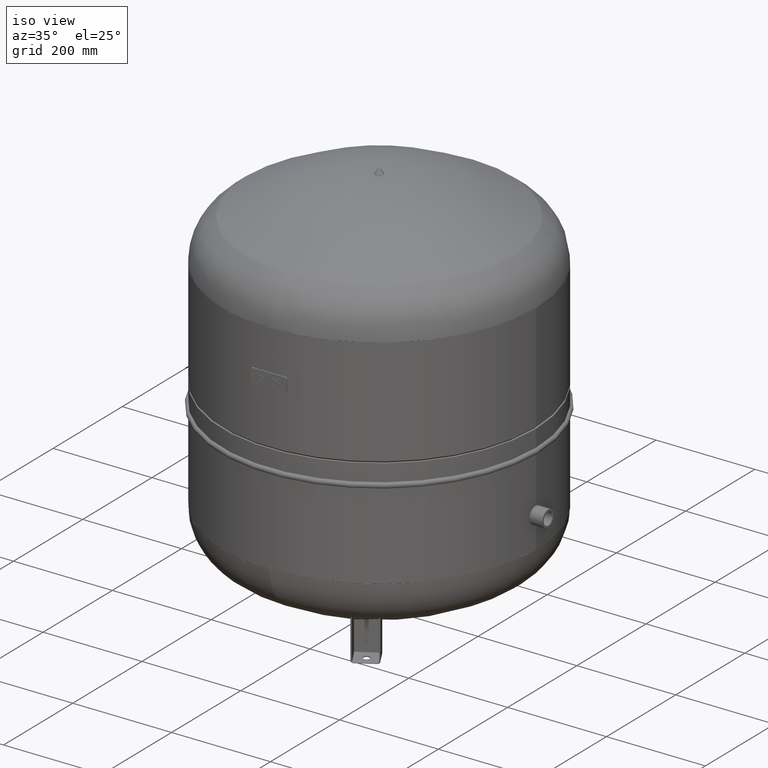
[diagram: clean part render]
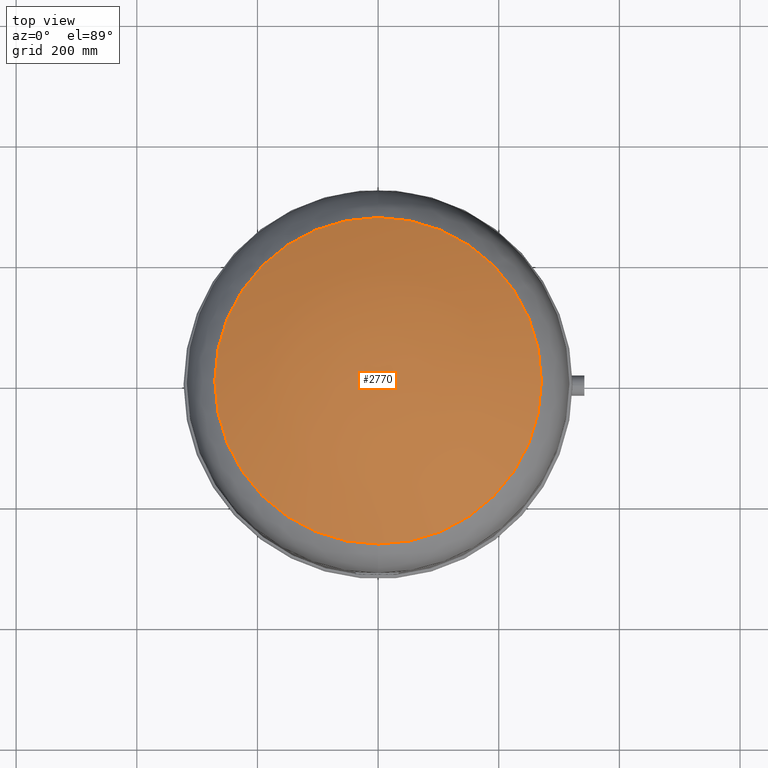
[diagram: tour spotlight — one face highlighted and labeled with its STEP entity id]
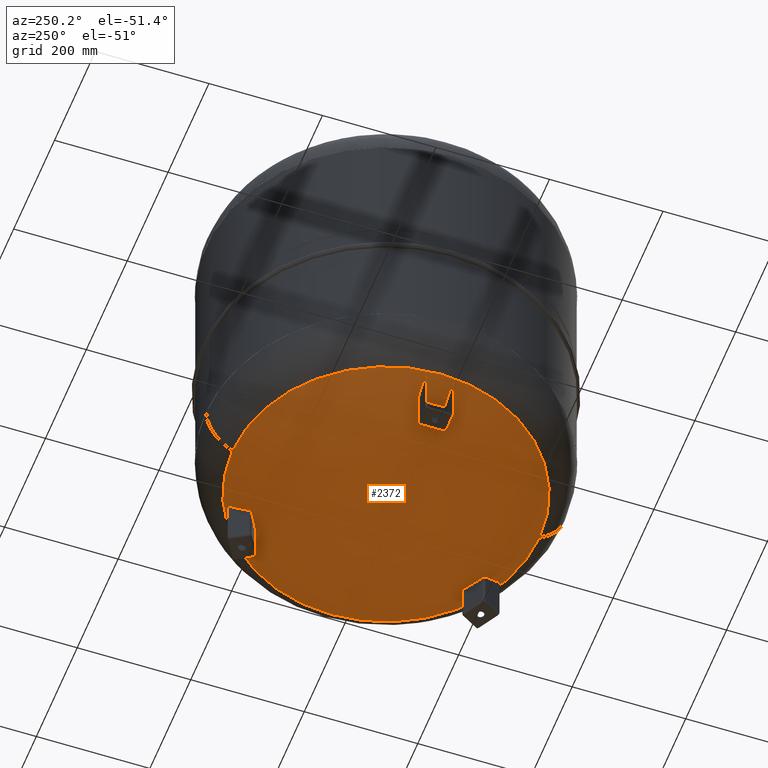
[diagram: tour spotlight — one face highlighted and labeled with its STEP entity id]
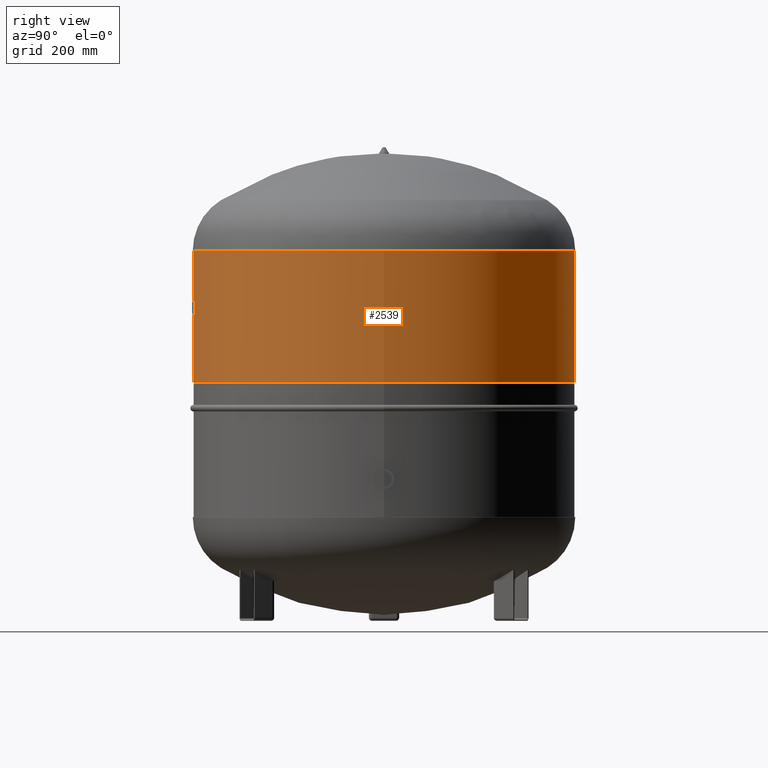
[diagram: tour spotlight — one face highlighted and labeled with its STEP entity id]
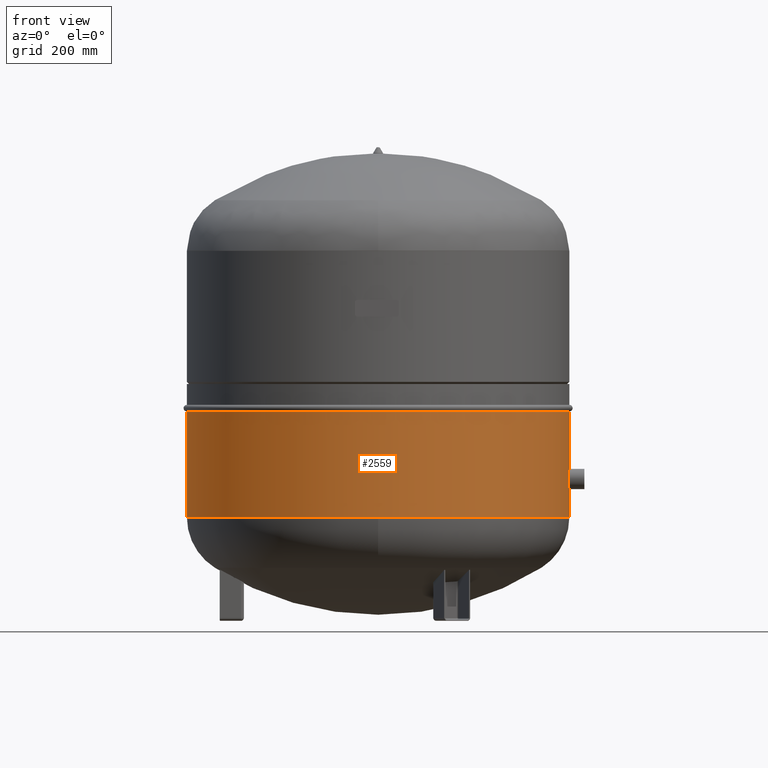
[diagram: tour spotlight — one face highlighted and labeled with its STEP entity id]
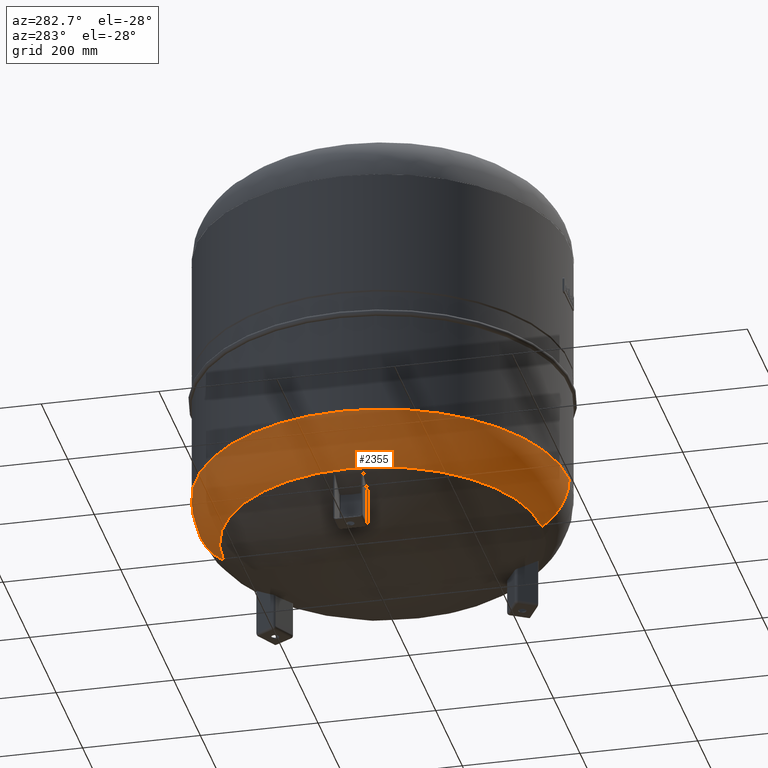
[diagram: tour spotlight — one face highlighted and labeled with its STEP entity id]
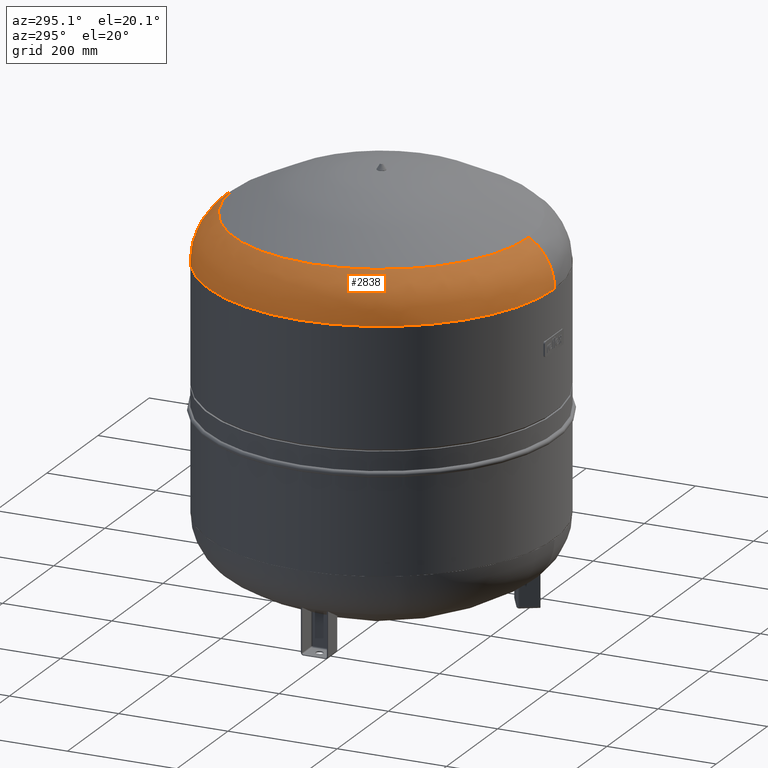
[diagram: tour spotlight — one face highlighted and labeled with its STEP entity id]
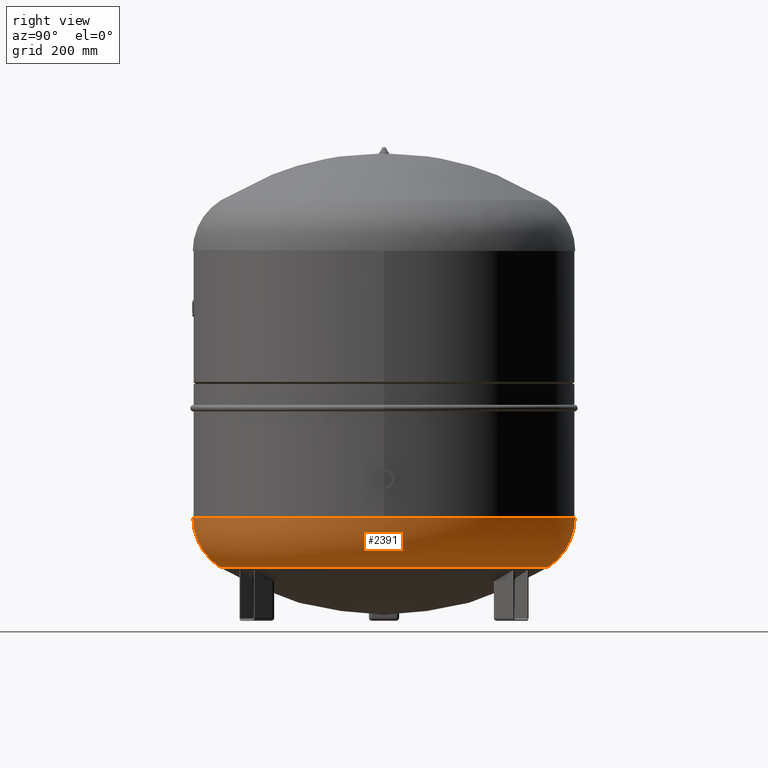
[diagram: tour spotlight — one face highlighted and labeled with its STEP entity id]
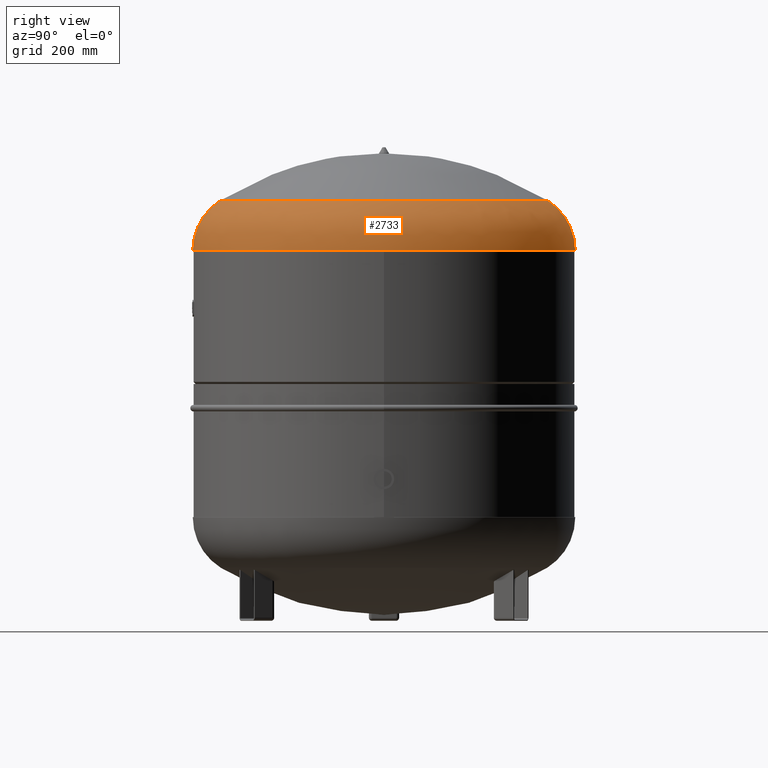
[diagram: tour spotlight — one face highlighted and labeled with its STEP entity id]
A machine part: a face-by-face anatomy tour. The part has 245 B-rep faces; the first image is the clean iso view, then the 8 largest visible faces are spotlighted one at a time (largest first), each with its STEP entity span.

Face 1 — top view, entity #2770. In plain terms, the highlighted face is a freeform B-spline surface patch.
Definition (entity closure, byte-faithful):
#2696=CARTESIAN_POINT('',(8.065826E-015,-270.639024390243830,697.086439681297520));
#2697=VERTEX_POINT('',#2696);
#2715=CARTESIAN_POINT('',(-2.507680E-014,270.639024390243830,697.086439681297520));
#2716=VERTEX_POINT('',#2715);
#2724=CARTESIAN_POINT('',(-7.495146E-015,-1.431249E-014,697.086439681297520));
#2725=DIRECTION('',(0.0,0.0,1.0));
#2726=DIRECTION('',(-1.0,0.0,0.0));
#2727=AXIS2_PLACEMENT_3D('',#2724,#2725,#2726);
#2728=CIRCLE('',#2727,270.639024390243830);
#2729=EDGE_CURVE('',#2697,#2716,#2728,.T.);
#2734=CARTESIAN_POINT('',(-229.211814269567920,270.639024390243780,631.099250446163070));
#2735=CARTESIAN_POINT('',(-319.553692100537090,-2.842171E-014,775.000000000000110));
#2736=CARTESIAN_POINT('',(-229.211814269567950,-270.639024390243830,631.099250446163180));
#2737=CARTESIAN_POINT('',(5.684342E-014,270.639024390243780,774.999999999999770));
#2738=CARTESIAN_POINT('',(5.684342E-014,8.431219E-015,975.618000265392540));
#2739=CARTESIAN_POINT('',(2.842171E-014,-270.639024390243830,775.0));
#2740=CARTESIAN_POINT('',(229.211814269567920,270.639024390243780,631.099250446162840));
#2741=CARTESIAN_POINT('',(319.553692100536980,-2.842171E-014,774.999999999999770));
#2742=CARTESIAN_POINT('',(229.211814269567920,-270.639024390243830,631.099250446163070));
#2750=(BOUNDED_SURFACE()B_SPLINE_SURFACE(2,2,((#2734,#2737,#2740),(#2735,#2738,#2741),(#2736,#2739,#2742)),.UNSPECIFIED.,.F.,.F.,.U.)B_SPLINE_SURFACE_WITH_KNOTS((3,3),(3,3),(-0.560615186256406,0.560615186256406),(0.0,1.121230372512813),.UNSPECIFIED.)GEOMETRIC_REPRESENTATION_ITEM()RATIONAL_B_SPLINE_SURFACE(((1.0,0.846928172261881,1.0),(0.846928172261882,0.717287328970851,0.846928172261882),(1.0,0.846928172261881,1.0)))REPRESENTATION_ITEM('')SURFACE());
#2751=CARTESIAN_POINT('',(-270.639024390243830,-1.431249E-014,697.086439681297630));
#2752=VERTEX_POINT('',#2751);
#2753=CARTESIAN_POINT('',(-7.495146E-015,-1.431249E-014,697.086439681297520));
#2754=DIRECTION('',(0.0,0.0,1.0));
#2755=DIRECTION('',(-1.0,0.0,0.0));
#2756=AXIS2_PLACEMENT_3D('',#2753,#2754,#2755);
#2757=CIRCLE('',#2756,270.639024390243830);
#2758=EDGE_CURVE('',#2752,#2697,#2757,.T.);
#2759=ORIENTED_EDGE('',*,*,#2758,.T.);
#2760=ORIENTED_EDGE('',*,*,#2729,.T.);
#2761=CARTESIAN_POINT('',(-7.495146E-015,-1.431249E-014,697.086439681297520));
#2762=DIRECTION('',(0.0,0.0,1.0));
#2763=DIRECTION('',(-1.0,0.0,0.0));
#2764=AXIS2_PLACEMENT_3D('',#2761,#2762,#2763);
#2765=CIRCLE('',#2764,270.639024390243830);
#2766=EDGE_CURVE('',#2716,#2752,#2765,.T.);
#2767=ORIENTED_EDGE('',*,*,#2766,.T.);
#2768=EDGE_LOOP('',(#2759,#2760,#2767));
#2769=FACE_OUTER_BOUND('',#2768,.T.);
#2770=ADVANCED_FACE('',(#2769),#2750,.T.);

Face 2 — auxiliary view, entity #2372. In plain terms, the highlighted spherical surface has radius 509 mm.
Definition (entity closure, byte-faithful):
#2311=CARTESIAN_POINT('',(8.065826E-015,-270.639024390243830,87.913560318702380));
#2312=VERTEX_POINT('',#2311);
#2328=CARTESIAN_POINT('',(-2.507680E-014,270.639024390243830,87.913560318702480));
#2329=VERTEX_POINT('',#2328);
#2337=CARTESIAN_POINT('',(-270.639024390243830,-1.431249E-014,87.913560318702423));
#2338=VERTEX_POINT('',#2337);
#2339=CARTESIAN_POINT('',(-7.495146E-015,-1.431249E-014,87.913560318702437));
#2340=DIRECTION('',(0.0,0.0,1.0));
#2341=DIRECTION('',(-1.0,0.0,0.0));
#2342=AXIS2_PLACEMENT_3D('',#2339,#2340,#2341);
#2343=CIRCLE('',#2342,270.639024390243830);
#2344=EDGE_CURVE('',#2329,#2338,#2343,.T.);
#2346=CARTESIAN_POINT('',(-7.495146E-015,-1.431249E-014,87.913560318702437));
#2347=DIRECTION('',(0.0,0.0,1.0));
#2348=DIRECTION('',(-1.0,0.0,0.0));
#2349=AXIS2_PLACEMENT_3D('',#2346,#2347,#2348);
#2350=CIRCLE('',#2349,270.639024390243830);
#2351=EDGE_CURVE('',#2338,#2312,#2350,.T.);
#2356=CARTESIAN_POINT('',(-1.005746E-013,-9.350178E-014,519.0));
#2357=DIRECTION('',(0.0,-1.0,0.0));
#2358=DIRECTION('',(1.0,0.0,0.0));
#2359=AXIS2_PLACEMENT_3D('',#2356,#2357,#2358);
#2360=SPHERICAL_SURFACE('',#2359,509.000000000000060);
#2361=ORIENTED_EDGE('',*,*,#2351,.F.);
#2362=ORIENTED_EDGE('',*,*,#2344,.F.);
#2363=CARTESIAN_POINT('',(-7.495146E-015,-1.431249E-014,87.913560318702437));
#2364=DIRECTION('',(0.0,0.0,1.0));
#2365=DIRECTION('',(-1.0,0.0,0.0));
#2366=AXIS2_PLACEMENT_3D('',#2363,#2364,#2365);
#2367=CIRCLE('',#2366,270.639024390243830);
#2368=EDGE_CURVE('',#2312,#2329,#2367,.T.);
#2369=ORIENTED_EDGE('',*,*,#2368,.F.);
#2370=EDGE_LOOP('',(#2361,#2362,#2369));
#2371=FACE_OUTER_BOUND('',#2370,.T.);
#2372=ADVANCED_FACE('',(#2371),#2360,.T.);

Face 3 — right view, entity #2539. In plain terms, the highlighted cylindrical surface (bore or boss wall) has radius 317 mm, axis along (0, 0, 1).
Definition (entity closure, byte-faithful):
#2428=CARTESIAN_POINT('',(317.0,0.0,613.0));
#2429=VERTEX_POINT('',#2428);
#2430=CARTESIAN_POINT('',(1.668796E-014,0.0,613.0));
#2431=DIRECTION('',(0.0,0.0,1.0));
#2432=DIRECTION('',(1.0,0.0,0.0));
#2433=AXIS2_PLACEMENT_3D('',#2430,#2431,#2432);
#2434=CIRCLE('',#2433,317.0);
#2435=EDGE_CURVE('',#2429,#2429,#2434,.T.);
#2513=CARTESIAN_POINT('',(316.999999999999940,0.0,395.999993016203580));
#2514=VERTEX_POINT('',#2513);
#2515=CARTESIAN_POINT('',(2.710337E-016,0.0,395.999993016203630));
#2516=DIRECTION('',(0.0,0.0,1.0));
#2517=DIRECTION('',(1.0,0.0,0.0));
#2518=AXIS2_PLACEMENT_3D('',#2515,#2516,#2517);
#2519=CIRCLE('',#2518,316.999999999999940);
#2520=EDGE_CURVE('',#2514,#2514,#2519,.T.);
#2528=CARTESIAN_POINT('',(8.479499E-015,0.0,501.999996508101790));
#2529=DIRECTION('',(7.743835E-017,0.0,1.0));
#2530=DIRECTION('',(1.0,0.0,0.0));
#2531=AXIS2_PLACEMENT_3D('',#2528,#2529,#2530);
#2532=CYLINDRICAL_SURFACE('',#2531,316.999999999999940);
#2533=ORIENTED_EDGE('',*,*,#2435,.F.);
#2534=EDGE_LOOP('',(#2533));
#2535=FACE_OUTER_BOUND('',#2534,.T.);
#2536=ORIENTED_EDGE('',*,*,#2520,.T.);
#2537=EDGE_LOOP('',(#2536));
#2538=FACE_BOUND('',#2537,.T.);
#2539=ADVANCED_FACE('',(#2535,#2538),#2532,.T.);

Face 4 — front view, entity #2559. In plain terms, the highlighted cylindrical surface (bore or boss wall) has radius 317 mm, axis along (0, 0, 1).
Definition (entity closure, byte-faithful):
#2445=CARTESIAN_POINT('',(317.000000000000110,0.0,347.050004485004250));
#2446=VERTEX_POINT('',#2445);
#2447=CARTESIAN_POINT('',(-3.519573E-015,0.0,347.050004485004250));
#2448=DIRECTION('',(0.0,0.0,1.0));
#2449=DIRECTION('',(1.0,0.0,0.0));
#2450=AXIS2_PLACEMENT_3D('',#2447,#2448,#2449);
#2451=CIRCLE('',#2450,317.000000000000110);
#2452=EDGE_CURVE('',#2446,#2446,#2451,.T.);
#2540=CARTESIAN_POINT('',(-1.668796E-014,0.0,174.500000000000060));
#2541=DIRECTION('',(0.0,0.0,1.0));
#2542=DIRECTION('',(1.0,0.0,0.0));
#2543=AXIS2_PLACEMENT_3D('',#2540,#2541,#2542);
#2544=CYLINDRICAL_SURFACE('',#2543,317.0);
#2545=ORIENTED_EDGE('',*,*,#2452,.F.);
#2546=EDGE_LOOP('',(#2545));
#2547=FACE_OUTER_BOUND('',#2546,.T.);
#2548=CARTESIAN_POINT('',(317.0,0.0,172.000000000000060));
#2549=VERTEX_POINT('',#2548);
#2550=CARTESIAN_POINT('',(-1.668796E-014,0.0,172.000000000000060));
#2551=DIRECTION('',(0.0,0.0,-1.0));
#2552=DIRECTION('',(1.0,0.0,0.0));
#2553=AXIS2_PLACEMENT_3D('',#2550,#2551,#2552);
#2554=CIRCLE('',#2553,317.0);
#2555=EDGE_CURVE('',#2549,#2549,#2554,.T.);
#2556=ORIENTED_EDGE('',*,*,#2555,.F.);
#2557=EDGE_LOOP('',(#2556));
#2558=FACE_BOUND('',#2557,.T.);
#2559=ADVANCED_FACE('',(#2547,#2558),#2544,.T.);

Face 5 — auxiliary view, entity #2355. In plain terms, the highlighted toroidal blend (fillet) surface has major radius 218 mm and minor (blend) radius 99 mm.
Definition (entity closure, byte-faithful):
#2260=CARTESIAN_POINT('',(-317.000000000000060,-2.971473E-014,171.759449372628580));
#2261=VERTEX_POINT('',#2260);
#2285=CARTESIAN_POINT('',(-3.882002E-014,317.0,171.759449372628690));
#2286=VERTEX_POINT('',#2285);
#2294=CARTESIAN_POINT('',(-1.556097E-014,-2.971473E-014,171.759449372628640));
#2295=DIRECTION('',(0.0,0.0,1.0));
#2296=DIRECTION('',(-1.0,0.0,0.0));
#2297=AXIS2_PLACEMENT_3D('',#2294,#2295,#2296);
#2298=CIRCLE('',#2297,317.000000000000060);
#2299=EDGE_CURVE('',#2286,#2261,#2298,.T.);
#2304=CARTESIAN_POINT('',(0.0,-2.971473E-014,171.759449372628670));
#2305=DIRECTION('',(-9.619823E-017,-1.836970E-016,1.0));
#2306=DIRECTION('',(0.0,-1.0,0.0));
#2307=AXIS2_PLACEMENT_3D('',#2304,#2305,#2306);
#2308=TOROIDAL_SURFACE('',#2307,218.0,99.0);
#2309=CARTESIAN_POINT('',(6.444462E-030,-317.000000000000110,171.759449372628580));
#2310=VERTEX_POINT('',#2309);
#2311=CARTESIAN_POINT('',(8.065826E-015,-270.639024390243830,87.913560318702380));
#2312=VERTEX_POINT('',#2311);
#2313=CARTESIAN_POINT('',(0.0,-218.000000000000030,171.759449372628640));
#2314=DIRECTION('',(1.0,0.0,0.0));
#2315=DIRECTION('',(0.0,-1.0,0.0));
#2316=AXIS2_PLACEMENT_3D('',#2313,#2314,#2315);
#2317=CIRCLE('',#2316,99.0);
#2318=EDGE_CURVE('',#2310,#2312,#2317,.T.);
#2319=ORIENTED_EDGE('',*,*,#2318,.F.);
#2320=CARTESIAN_POINT('',(-1.556097E-014,-2.971473E-014,171.759449372628640));
#2321=DIRECTION('',(0.0,0.0,1.0));
#2322=DIRECTION('',(-1.0,0.0,0.0));
#2323=AXIS2_PLACEMENT_3D('',#2320,#2321,#2322);
#2324=CIRCLE('',#2323,317.000000000000060);
#2325=EDGE_CURVE('',#2261,#2310,#2324,.T.);
#2326=ORIENTED_EDGE('',*,*,#2325,.F.);
#2327=ORIENTED_EDGE('',*,*,#2299,.F.);
#2328=CARTESIAN_POINT('',(-2.507680E-014,270.639024390243830,87.913560318702480));
#2329=VERTEX_POINT('',#2328);
#2330=CARTESIAN_POINT('',(-2.669642E-014,217.999999999999970,171.759449372628690));
#2331=DIRECTION('',(-1.0,0.0,0.0));
#2332=DIRECTION('',(0.0,1.0,0.0));
#2333=AXIS2_PLACEMENT_3D('',#2330,#2331,#2332);
#2334=CIRCLE('',#2333,99.0);
#2335=EDGE_CURVE('',#2286,#2329,#2334,.T.);
#2336=ORIENTED_EDGE('',*,*,#2335,.T.);
#2337=CARTESIAN_POINT('',(-270.639024390243830,-1.431249E-014,87.913560318702423));
#2338=VERTEX_POINT('',#2337);
#2339=CARTESIAN_POINT('',(-7.495146E-015,-1.431249E-014,87.913560318702437));
#2340=DIRECTION('',(0.0,0.0,1.0));
#2341=DIRECTION('',(-1.0,0.0,0.0));
#2342=AXIS2_PLACEMENT_3D('',#2339,#2340,#2341);
#2343=CIRCLE('',#2342,270.639024390243830);
#2344=EDGE_CURVE('',#2329,#2338,#2343,.T.);
#2345=ORIENTED_EDGE('',*,*,#2344,.T.);
#2346=CARTESIAN_POINT('',(-7.495146E-015,-1.431249E-014,87.913560318702437));
#2347=DIRECTION('',(0.0,0.0,1.0));
#2348=DIRECTION('',(-1.0,0.0,0.0));
#2349=AXIS2_PLACEMENT_3D('',#2346,#2347,#2348);
#2350=CIRCLE('',#2349,270.639024390243830);
#2351=EDGE_CURVE('',#2338,#2312,#2350,.T.);
#2352=ORIENTED_EDGE('',*,*,#2351,.T.);
#2353=EDGE_LOOP('',(#2319,#2326,#2327,#2336,#2345,#2352));
#2354=FACE_OUTER_BOUND('',#2353,.T.);
#2355=ADVANCED_FACE('',(#2354),#2308,.T.);

Face 6 — auxiliary view, entity #2838. In plain terms, the highlighted face is a freeform B-spline surface patch.
Definition (entity closure, byte-faithful):
#2599=CARTESIAN_POINT('',(-317.000000000000060,-2.971473E-014,613.240550627371480));
#2600=VERTEX_POINT('',#2599);
#2624=CARTESIAN_POINT('',(9.762260E-031,-317.000000000000110,613.240550627371590));
#2625=VERTEX_POINT('',#2624);
#2633=CARTESIAN_POINT('',(-1.556097E-014,-2.971473E-014,613.240550627371360));
#2634=DIRECTION('',(0.0,0.0,1.0));
#2635=DIRECTION('',(-1.0,0.0,0.0));
#2636=AXIS2_PLACEMENT_3D('',#2633,#2634,#2635);
#2637=CIRCLE('',#2636,317.000000000000060);
#2638=EDGE_CURVE('',#2600,#2625,#2637,.T.);
#2696=CARTESIAN_POINT('',(8.065826E-015,-270.639024390243830,697.086439681297520));
#2697=VERTEX_POINT('',#2696);
#2698=CARTESIAN_POINT('',(0.0,-218.000000000000030,613.240550627371480));
#2699=DIRECTION('',(-1.0,0.0,0.0));
#2700=DIRECTION('',(0.0,-1.0,0.0));
#2701=AXIS2_PLACEMENT_3D('',#2698,#2699,#2700);
#2702=CIRCLE('',#2701,99.0);
#2703=EDGE_CURVE('',#2625,#2697,#2702,.T.);
#2706=CARTESIAN_POINT('',(-3.882002E-014,317.0,613.240550627371140));
#2707=VERTEX_POINT('',#2706);
#2715=CARTESIAN_POINT('',(-2.507680E-014,270.639024390243830,697.086439681297520));
#2716=VERTEX_POINT('',#2715);
#2717=CARTESIAN_POINT('',(-2.669642E-014,217.999999999999970,613.240550627371250));
#2718=DIRECTION('',(1.0,0.0,0.0));
#2719=DIRECTION('',(0.0,1.0,0.0));
#2720=AXIS2_PLACEMENT_3D('',#2717,#2718,#2719);
#2721=CIRCLE('',#2720,99.0);
#2722=EDGE_CURVE('',#2707,#2716,#2721,.T.);
#2751=CARTESIAN_POINT('',(-270.639024390243830,-1.431249E-014,697.086439681297630));
#2752=VERTEX_POINT('',#2751);
#2753=CARTESIAN_POINT('',(-7.495146E-015,-1.431249E-014,697.086439681297520));
#2754=DIRECTION('',(0.0,0.0,1.0));
#2755=DIRECTION('',(-1.0,0.0,0.0));
#2756=AXIS2_PLACEMENT_3D('',#2753,#2754,#2755);
#2757=CIRCLE('',#2756,270.639024390243830);
#2758=EDGE_CURVE('',#2752,#2697,#2757,.T.);
#2761=CARTESIAN_POINT('',(-7.495146E-015,-1.431249E-014,697.086439681297520));
#2762=DIRECTION('',(0.0,0.0,1.0));
#2763=DIRECTION('',(-1.0,0.0,0.0));
#2764=AXIS2_PLACEMENT_3D('',#2761,#2762,#2763);
#2765=CIRCLE('',#2764,270.639024390243830);
#2766=EDGE_CURVE('',#2716,#2752,#2765,.T.);
#2771=CARTESIAN_POINT('',(-1.457282E-014,119.0,613.240550627370910));
#2772=CARTESIAN_POINT('',(-5.049191E-015,118.999999999999720,712.240550627371250));
#2773=CARTESIAN_POINT('',(-1.717279E-014,217.999999999999970,712.240550627371250));
#2774=CARTESIAN_POINT('',(-2.929640E-014,317.000000000000230,712.240550627371250));
#2775=CARTESIAN_POINT('',(-3.882002E-014,316.999999999999940,613.240550627370910));
#2776=CARTESIAN_POINT('',(-119.000000000000010,118.999999999999940,613.240550627370910));
#2777=CARTESIAN_POINT('',(-118.999999999999690,118.999999999999660,712.240550627371250));
#2778=CARTESIAN_POINT('',(-217.999999999999940,217.999999999999890,712.240550627371250));
#2779=CARTESIAN_POINT('',(-317.000000000000230,317.000000000000110,712.240550627371250));
#2780=CARTESIAN_POINT('',(-317.0,316.999999999999890,613.240550627370910));
#2781=CARTESIAN_POINT('',(-119.000000000000030,-4.428754E-014,613.240550627370910));
#2782=CARTESIAN_POINT('',(-118.999999999999720,-2.610154E-014,712.240550627371250));
#2783=CARTESIAN_POINT('',(-217.999999999999970,-3.822514E-014,712.240550627371250));
#2784=CARTESIAN_POINT('',(-317.000000000000230,-5.034875E-014,712.240550627371250));
#2785=CARTESIAN_POINT('',(-317.0,-6.853475E-014,613.240550627371020));
#2786=CARTESIAN_POINT('',(-118.999999999999990,-119.000000000000040,613.240550627370910));
#2787=CARTESIAN_POINT('',(-118.999999999999660,-118.999999999999720,712.240550627371250));
#2788=CARTESIAN_POINT('',(-217.999999999999890,-217.999999999999940,712.240550627371250));
#2789=CARTESIAN_POINT('',(-317.000000000000110,-317.000000000000230,712.240550627371250));
#2790=CARTESIAN_POINT('',(-316.999999999999890,-317.0,613.240550627371140));
#2791=CARTESIAN_POINT('',(1.457282E-014,-119.000000000000060,613.240550627370910));
#2792=CARTESIAN_POINT('',(2.409644E-014,-118.999999999999730,712.240550627371250));
#2793=CARTESIAN_POINT('',(3.622004E-014,-217.999999999999970,712.240550627371250));
#2794=CARTESIAN_POINT('',(4.834365E-014,-317.000000000000230,712.240550627371250));
#2795=CARTESIAN_POINT('',(3.882002E-014,-317.000000000000060,613.240550627371140));
#2796=CARTESIAN_POINT('',(119.000000000000010,-119.000000000000010,613.240550627370910));
#2797=CARTESIAN_POINT('',(118.999999999999720,-118.999999999999690,712.240550627371250));
#2798=CARTESIAN_POINT('',(217.999999999999940,-217.999999999999890,712.240550627371250));
#2799=CARTESIAN_POINT('',(317.000000000000230,-317.000000000000170,712.240550627371250));
#2800=CARTESIAN_POINT('',(317.0,-316.999999999999940,613.240550627371140));
#2801=CARTESIAN_POINT('',(119.000000000000030,-1.514191E-014,613.240550627370910));
#2802=CARTESIAN_POINT('',(118.999999999999730,3.044092E-015,712.240550627371250));
#2803=CARTESIAN_POINT('',(217.999999999999970,1.516769E-014,712.240550627371250));
#2804=CARTESIAN_POINT('',(317.000000000000230,2.729130E-014,712.240550627371250));
#2805=CARTESIAN_POINT('',(317.0,9.105293E-015,613.240550627371020));
#2806=CARTESIAN_POINT('',(118.999999999999990,118.999999999999990,613.240550627370910));
#2807=CARTESIAN_POINT('',(118.999999999999690,118.999999999999690,712.240550627371250));
#2808=CARTESIAN_POINT('',(217.999999999999890,217.999999999999940,712.240550627371250));
#2809=CARTESIAN_POINT('',(317.000000000000110,317.000000000000170,712.240550627371250));
#2810=CARTESIAN_POINT('',(316.999999999999890,316.999999999999940,613.240550627370910));
#2811=CARTESIAN_POINT('',(-1.457282E-014,119.0,613.240550627370910));
#2812=CARTESIAN_POINT('',(-5.049191E-015,118.999999999999720,712.240550627371250));
#2813=CARTESIAN_POINT('',(-1.717279E-014,217.999999999999970,712.240550627371250));
#2814=CARTESIAN_POINT('',(-2.929640E-014,317.000000000000230,712.240550627371250));
#2815=CARTESIAN_POINT('',(-3.882002E-014,316.999999999999940,613.240550627370910));
#2823=(BOUNDED_SURFACE()B_SPLINE_SURFACE(2,2,((#2771,#2776,#2781,#2786,#2791,#2796,#2801,#2806,#2811),(#2772,#2777,#2782,#2787,#2792,#2797,#2802,#2807,#2812),(#2773,#2778,#2783,#2788,#2793,#2798,#2803,#2808,#2813),(#2774,#2779,#2784,#2789,#2794,#2799,#2804,#2809,#2814),(#2775,#2780,#2785,#2790,#2795,#2800,#2805,#2810,#2815)),.UNSPECIFIED.,.F.,.T.,.U.)B_SPLINE_SURFACE_WITH_KNOTS((3,2,3),(3,2,2,2,3),(-3.141592653589796,-1.570796326794897,3.192934E-015),(0.0,1.570796326794897,3.141592653589793,4.712388980384690,6.283185307179586),.UNSPECIFIED.)GEOMETRIC_REPRESENTATION_ITEM()RATIONAL_B_SPLINE_SURFACE(((1.0,0.707106781186548,1.0,0.707106781186548,1.0,0.707106781186548,1.0,0.707106781186548,1.0),(0.707106781186546,0.499999999999999,0.707106781186546,0.499999999999999,0.707106781186546,0.499999999999999,0.707106781186546,0.499999999999999,0.707106781186546),(1.0,0.707106781186548,1.0,0.707106781186548,1.0,0.707106781186548,1.0,0.707106781186548,1.0),(0.707106781186547,0.499999999999999,0.707106781186547,0.499999999999999,0.707106781186547,0.499999999999999,0.707106781186547,0.499999999999999,0.707106781186547),(1.0,0.707106781186548,1.0,0.707106781186548,1.0,0.707106781186548,1.0,0.707106781186548,1.0)))REPRESENTATION_ITEM('')SURFACE());
#2824=ORIENTED_EDGE('',*,*,#2703,.T.);
#2825=ORIENTED_EDGE('',*,*,#2758,.F.);
#2826=ORIENTED_EDGE('',*,*,#2766,.F.);
#2827=ORIENTED_EDGE('',*,*,#2722,.F.);
#2828=CARTESIAN_POINT('',(-1.556097E-014,-2.971473E-014,613.240550627371360));
#2829=DIRECTION('',(0.0,0.0,1.0));
#2830=DIRECTION('',(-1.0,0.0,0.0));
#2831=AXIS2_PLACEMENT_3D('',#2828,#2829,#2830);
#2832=CIRCLE('',#2831,317.000000000000060);
#2833=EDGE_CURVE('',#2707,#2600,#2832,.T.);
#2834=ORIENTED_EDGE('',*,*,#2833,.T.);
#2835=ORIENTED_EDGE('',*,*,#2638,.T.);
#2836=EDGE_LOOP('',(#2824,#2825,#2826,#2827,#2834,#2835));
#2837=FACE_OUTER_BOUND('',#2836,.T.);
#2838=ADVANCED_FACE('',(#2837),#2823,.T.);

Face 7 — right view, entity #2391. In plain terms, the highlighted toroidal blend (fillet) surface has major radius 218 mm and minor (blend) radius 99 mm.
Definition (entity closure, byte-faithful):
#2277=CARTESIAN_POINT('',(317.0,9.105293E-015,171.759449372628640));
#2278=VERTEX_POINT('',#2277);
#2285=CARTESIAN_POINT('',(-3.882002E-014,317.0,171.759449372628690));
#2286=VERTEX_POINT('',#2285);
#2287=CARTESIAN_POINT('',(-1.556097E-014,-2.971473E-014,171.759449372628640));
#2288=DIRECTION('',(0.0,0.0,1.0));
#2289=DIRECTION('',(-1.0,0.0,0.0));
#2290=AXIS2_PLACEMENT_3D('',#2287,#2288,#2289);
#2291=CIRCLE('',#2290,317.000000000000060);
#2292=EDGE_CURVE('',#2278,#2286,#2291,.T.);
#2309=CARTESIAN_POINT('',(6.444462E-030,-317.000000000000110,171.759449372628580));
#2310=VERTEX_POINT('',#2309);
#2311=CARTESIAN_POINT('',(8.065826E-015,-270.639024390243830,87.913560318702380));
#2312=VERTEX_POINT('',#2311);
#2313=CARTESIAN_POINT('',(0.0,-218.000000000000030,171.759449372628640));
#2314=DIRECTION('',(1.0,0.0,0.0));
#2315=DIRECTION('',(0.0,-1.0,0.0));
#2316=AXIS2_PLACEMENT_3D('',#2313,#2314,#2315);
#2317=CIRCLE('',#2316,99.0);
#2318=EDGE_CURVE('',#2310,#2312,#2317,.T.);
#2328=CARTESIAN_POINT('',(-2.507680E-014,270.639024390243830,87.913560318702480));
#2329=VERTEX_POINT('',#2328);
#2330=CARTESIAN_POINT('',(-2.669642E-014,217.999999999999970,171.759449372628690));
#2331=DIRECTION('',(-1.0,0.0,0.0));
#2332=DIRECTION('',(0.0,1.0,0.0));
#2333=AXIS2_PLACEMENT_3D('',#2330,#2331,#2332);
#2334=CIRCLE('',#2333,99.0);
#2335=EDGE_CURVE('',#2286,#2329,#2334,.T.);
#2363=CARTESIAN_POINT('',(-7.495146E-015,-1.431249E-014,87.913560318702437));
#2364=DIRECTION('',(0.0,0.0,1.0));
#2365=DIRECTION('',(-1.0,0.0,0.0));
#2366=AXIS2_PLACEMENT_3D('',#2363,#2364,#2365);
#2367=CIRCLE('',#2366,270.639024390243830);
#2368=EDGE_CURVE('',#2312,#2329,#2367,.T.);
#2373=CARTESIAN_POINT('',(0.0,-2.971473E-014,171.759449372628670));
#2374=DIRECTION('',(-9.619823E-017,-1.836970E-016,1.0));
#2375=DIRECTION('',(0.0,-1.0,0.0));
#2376=AXIS2_PLACEMENT_3D('',#2373,#2374,#2375);
#2377=TOROIDAL_SURFACE('',#2376,218.0,99.0);
#2378=ORIENTED_EDGE('',*,*,#2318,.T.);
#2379=ORIENTED_EDGE('',*,*,#2368,.T.);
#2380=ORIENTED_EDGE('',*,*,#2335,.F.);
#2381=ORIENTED_EDGE('',*,*,#2292,.F.);
#2382=CARTESIAN_POINT('',(-1.556097E-014,-2.971473E-014,171.759449372628640));
#2383=DIRECTION('',(0.0,0.0,1.0));
#2384=DIRECTION('',(-1.0,0.0,0.0));
#2385=AXIS2_PLACEMENT_3D('',#2382,#2383,#2384);
#2386=CIRCLE('',#2385,317.000000000000060);
#2387=EDGE_CURVE('',#2310,#2278,#2386,.T.);
#2388=ORIENTED_EDGE('',*,*,#2387,.F.);
#2389=EDGE_LOOP('',(#2378,#2379,#2380,#2381,#2388));
#2390=FACE_OUTER_BOUND('',#2389,.T.);
#2391=ADVANCED_FACE('',(#2390),#2377,.T.);

Face 8 — right view, entity #2733. In plain terms, the highlighted face is a freeform B-spline surface patch.
Definition (entity closure, byte-faithful):
#2616=CARTESIAN_POINT('',(317.0,9.105293E-015,613.240550627371360));
#2617=VERTEX_POINT('',#2616);
#2624=CARTESIAN_POINT('',(9.762260E-031,-317.000000000000110,613.240550627371590));
#2625=VERTEX_POINT('',#2624);
#2626=CARTESIAN_POINT('',(-1.556097E-014,-2.971473E-014,613.240550627371360));
#2627=DIRECTION('',(0.0,0.0,1.0));
#2628=DIRECTION('',(-1.0,0.0,0.0));
#2629=AXIS2_PLACEMENT_3D('',#2626,#2627,#2628);
#2630=CIRCLE('',#2629,317.000000000000060);
#2631=EDGE_CURVE('',#2625,#2617,#2630,.T.);
#2643=CARTESIAN_POINT('',(-1.457282E-014,119.0,613.240550627371020));
#2644=CARTESIAN_POINT('',(-5.049191E-015,118.999999999999740,712.240550627371250));
#2645=CARTESIAN_POINT('',(-1.717279E-014,217.999999999999970,712.240550627371250));
#2646=CARTESIAN_POINT('',(-2.929640E-014,317.000000000000230,712.240550627371250));
#2647=CARTESIAN_POINT('',(-3.882002E-014,316.999999999999940,613.240550627370910));
#2648=CARTESIAN_POINT('',(-119.000000000000010,118.999999999999940,613.240550627371020));
#2649=CARTESIAN_POINT('',(-118.999999999999730,118.999999999999700,712.240550627371250));
#2650=CARTESIAN_POINT('',(-217.999999999999940,217.999999999999890,712.240550627371250));
#2651=CARTESIAN_POINT('',(-317.000000000000230,317.000000000000110,712.240550627371250));
#2652=CARTESIAN_POINT('',(-317.0,316.999999999999890,613.240550627370910));
#2653=CARTESIAN_POINT('',(-119.000000000000030,-4.428754E-014,613.240550627371020));
#2654=CARTESIAN_POINT('',(-118.999999999999740,-2.610154E-014,712.240550627371250));
#2655=CARTESIAN_POINT('',(-217.999999999999970,-3.822514E-014,712.240550627371250));
#2656=CARTESIAN_POINT('',(-317.000000000000230,-5.034875E-014,712.240550627371250));
#2657=CARTESIAN_POINT('',(-317.0,-6.853475E-014,613.240550627371020));
#2658=CARTESIAN_POINT('',(-118.999999999999990,-119.000000000000040,613.240550627371020));
#2659=CARTESIAN_POINT('',(-118.999999999999700,-118.999999999999760,712.240550627371250));
#2660=CARTESIAN_POINT('',(-217.999999999999890,-217.999999999999940,712.240550627371250));
#2661=CARTESIAN_POINT('',(-317.000000000000110,-317.000000000000230,712.240550627371250));
#2662=CARTESIAN_POINT('',(-316.999999999999890,-317.0,613.240550627371140));
#2663=CARTESIAN_POINT('',(1.457282E-014,-119.000000000000060,613.240550627371020));
#2664=CARTESIAN_POINT('',(2.409644E-014,-118.999999999999770,712.240550627371250));
#2665=CARTESIAN_POINT('',(3.622004E-014,-217.999999999999970,712.240550627371250));
#2666=CARTESIAN_POINT('',(4.834365E-014,-317.000000000000230,712.240550627371250));
#2667=CARTESIAN_POINT('',(3.882002E-014,-317.000000000000060,613.240550627371140));
#2668=CARTESIAN_POINT('',(119.000000000000010,-119.000000000000010,613.240550627371020));
#2669=CARTESIAN_POINT('',(118.999999999999760,-118.999999999999730,712.240550627371250));
#2670=CARTESIAN_POINT('',(217.999999999999940,-217.999999999999890,712.240550627371250));
#2671=CARTESIAN_POINT('',(317.000000000000230,-317.000000000000170,712.240550627371250));
#2672=CARTESIAN_POINT('',(317.0,-316.999999999999940,613.240550627371140));
#2673=CARTESIAN_POINT('',(119.000000000000030,-1.514191E-014,613.240550627371020));
#2674=CARTESIAN_POINT('',(118.999999999999770,3.044092E-015,712.240550627371250));
#2675=CARTESIAN_POINT('',(217.999999999999970,1.516769E-014,712.240550627371250));
#2676=CARTESIAN_POINT('',(317.000000000000230,2.729130E-014,712.240550627371250));
#2677=CARTESIAN_POINT('',(317.0,9.105293E-015,613.240550627371020));
#2678=CARTESIAN_POINT('',(118.999999999999990,118.999999999999990,613.240550627371020));
#2679=CARTESIAN_POINT('',(118.999999999999730,118.999999999999730,712.240550627371250));
#2680=CARTESIAN_POINT('',(217.999999999999890,217.999999999999940,712.240550627371250));
#2681=CARTESIAN_POINT('',(317.000000000000110,317.000000000000170,712.240550627371250));
#2682=CARTESIAN_POINT('',(316.999999999999890,316.999999999999940,613.240550627370910));
#2683=CARTESIAN_POINT('',(-1.457282E-014,119.0,613.240550627371020));
#2684=CARTESIAN_POINT('',(-5.049191E-015,118.999999999999740,712.240550627371250));
#2685=CARTESIAN_POINT('',(-1.717279E-014,217.999999999999970,712.240550627371250));
#2686=CARTESIAN_POINT('',(-2.929640E-014,317.000000000000230,712.240550627371250));
#2687=CARTESIAN_POINT('',(-3.882002E-014,316.999999999999940,613.240550627370910));
#2695=(BOUNDED_SURFACE()B_SPLINE_SURFACE(2,2,((#2643,#2648,#2653,#2658,#2663,#2668,#2673,#2678,#2683),(#2644,#2649,#2654,#2659,#2664,#2669,#2674,#2679,#2684),(#2645,#2650,#2655,#2660,#2665,#2670,#2675,#2680,#2685),(#2646,#2651,#2656,#2661,#2666,#2671,#2676,#2681,#2686),(#2647,#2652,#2657,#2662,#2667,#2672,#2677,#2682,#2687)),.UNSPECIFIED.,.F.,.T.,.U.)B_SPLINE_SURFACE_WITH_KNOTS((3,2,3),(3,2,2,2,3),(-3.141592653589796,-1.570796326794897,2.884905E-015),(0.0,1.570796326794897,3.141592653589793,4.712388980384690,6.283185307179586),.UNSPECIFIED.)GEOMETRIC_REPRESENTATION_ITEM()RATIONAL_B_SPLINE_SURFACE(((1.0,0.707106781186548,1.0,0.707106781186548,1.0,0.707106781186548,1.0,0.707106781186548,1.0),(0.707106781186546,0.499999999999999,0.707106781186546,0.499999999999999,0.707106781186546,0.499999999999999,0.707106781186546,0.499999999999999,0.707106781186546),(1.0,0.707106781186548,1.0,0.707106781186548,1.0,0.707106781186548,1.0,0.707106781186548,1.0),(0.707106781186547,0.499999999999999,0.707106781186547,0.499999999999999,0.707106781186547,0.499999999999999,0.707106781186547,0.499999999999999,0.707106781186547),(1.0,0.707106781186548,1.0,0.707106781186548,1.0,0.707106781186548,1.0,0.707106781186548,1.0)))REPRESENTATION_ITEM('')SURFACE());
#2696=CARTESIAN_POINT('',(8.065826E-015,-270.639024390243830,697.086439681297520));
#2697=VERTEX_POINT('',#2696);
#2698=CARTESIAN_POINT('',(0.0,-218.000000000000030,613.240550627371480));
#2699=DIRECTION('',(-1.0,0.0,0.0));
#2700=DIRECTION('',(0.0,-1.0,0.0));
#2701=AXIS2_PLACEMENT_3D('',#2698,#2699,#2700);
#2702=CIRCLE('',#2701,99.0);
#2703=EDGE_CURVE('',#2625,#2697,#2702,.T.);
#2704=ORIENTED_EDGE('',*,*,#2703,.F.);
#2705=ORIENTED_EDGE('',*,*,#2631,.T.);
#2706=CARTESIAN_POINT('',(-3.882002E-014,317.0,613.240550627371140));
#2707=VERTEX_POINT('',#2706);
#2708=CARTESIAN_POINT('',(-1.556097E-014,-2.971473E-014,613.240550627371360));
#2709=DIRECTION('',(0.0,0.0,1.0));
#2710=DIRECTION('',(-1.0,0.0,0.0));
#2711=AXIS2_PLACEMENT_3D('',#2708,#2709,#2710);
#2712=CIRCLE('',#2711,317.000000000000060);
#2713=EDGE_CURVE('',#2617,#2707,#2712,.T.);
#2714=ORIENTED_EDGE('',*,*,#2713,.T.);
#2715=CARTESIAN_POINT('',(-2.507680E-014,270.639024390243830,697.086439681297520));
#2716=VERTEX_POINT('',#2715);
#2717=CARTESIAN_POINT('',(-2.669642E-014,217.999999999999970,613.240550627371250));
#2718=DIRECTION('',(1.0,0.0,0.0));
#2719=DIRECTION('',(0.0,1.0,0.0));
#2720=AXIS2_PLACEMENT_3D('',#2717,#2718,#2719);
#2721=CIRCLE('',#2720,99.0);
#2722=EDGE_CURVE('',#2707,#2716,#2721,.T.);
#2723=ORIENTED_EDGE('',*,*,#2722,.T.);
#2724=CARTESIAN_POINT('',(-7.495146E-015,-1.431249E-014,697.086439681297520));
#2725=DIRECTION('',(0.0,0.0,1.0));
#2726=DIRECTION('',(-1.0,0.0,0.0));
#2727=AXIS2_PLACEMENT_3D('',#2724,#2725,#2726);
#2728=CIRCLE('',#2727,270.639024390243830);
#2729=EDGE_CURVE('',#2697,#2716,#2728,.T.);
#2730=ORIENTED_EDGE('',*,*,#2729,.F.);
#2731=EDGE_LOOP('',(#2704,#2705,#2714,#2723,#2730));
#2732=FACE_OUTER_BOUND('',#2731,.T.);
#2733=ADVANCED_FACE('',(#2732),#2695,.T.);